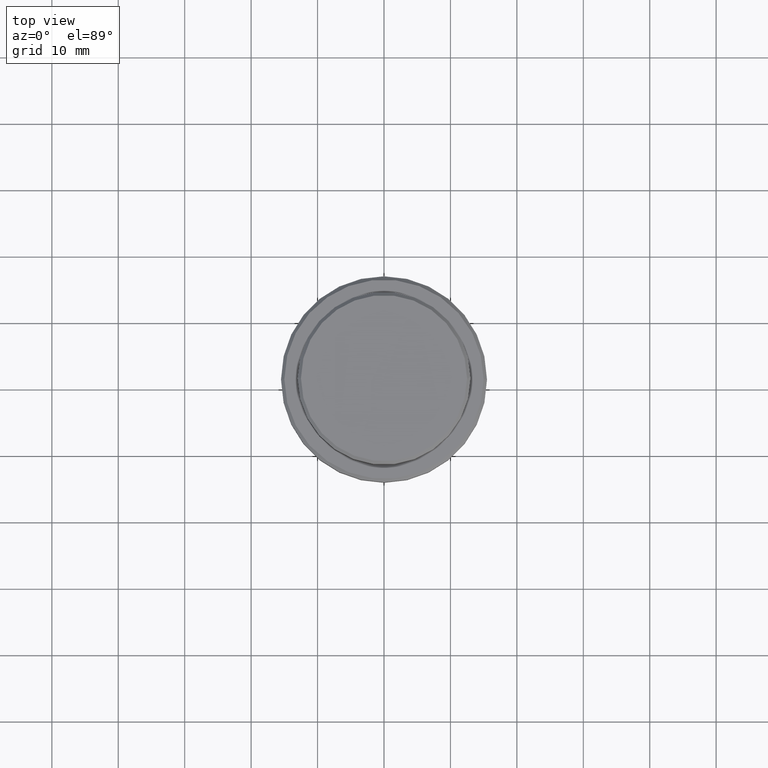
[diagram: clean part render]
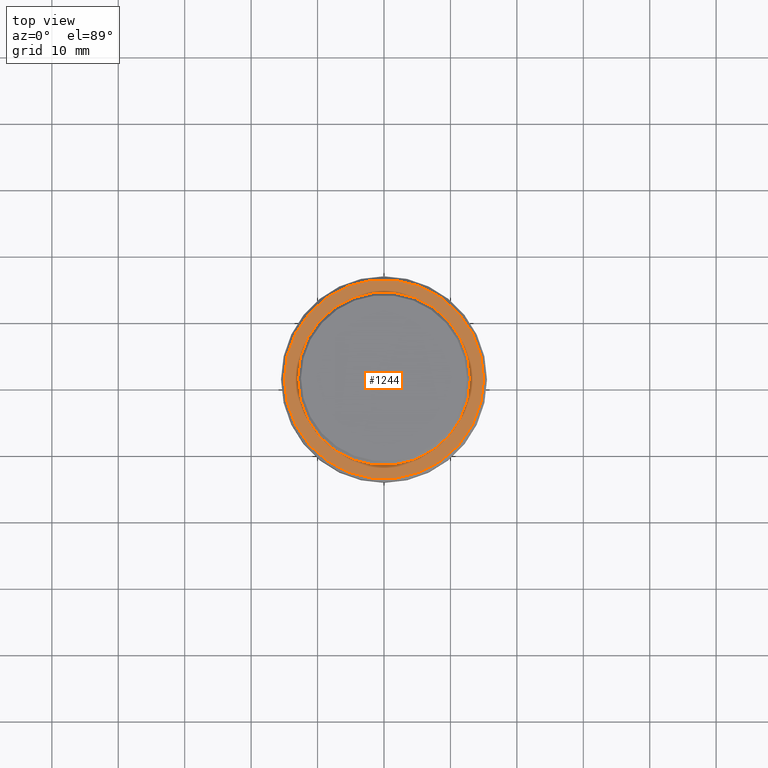
[diagram: same view with one face highlighted and labeled with its STEP entity id]
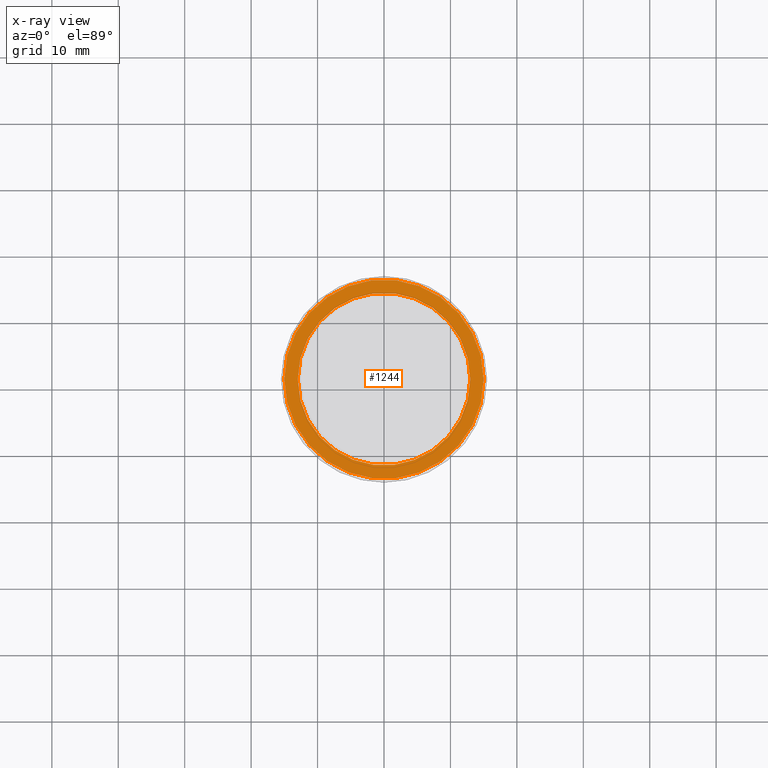
[diagram: x-ray of the same camera — body ghosted, the highlighted face saturated]
A machine part, top view. The second image highlights one B-rep face of the part: STEP entity #1244.
The next image is the same camera in x-ray: the body ghosted, the highlighted face saturated — about 0% of this face is hidden behind the body in this view.
In plain terms, the highlighted planar face has unit normal (0, -0, 1).
Its self-contained STEP definition (entity closure, byte-faithful):
#1 = DIRECTION ( 'NONE',  ( -0.000000000000000000, -0.000000000000000000, 1.000000000000000000 ) ) ;
#6 = CARTESIAN_POINT ( 'NONE',  ( 0.000000000000000000, 0.000000000000000000, -9.000000000000000000 ) ) ;
#12 = CARTESIAN_POINT ( 'NONE',  ( -12.99999999999999467, 1.592040838891558504E-15, -9.000000000000000000 ) ) ;
#125 = DIRECTION ( 'NONE',  ( 1.000000000000000000, 0.000000000000000000, 0.000000000000000000 ) ) ;
#135 = CIRCLE ( 'NONE', #226, 12.99999999999999467 ) ;
#158 = AXIS2_PLACEMENT_3D ( 'NONE', #587, #504, #823 ) ;
#226 = AXIS2_PLACEMENT_3D ( 'NONE', #451, #1201, #125 ) ;
#270 = CARTESIAN_POINT ( 'NONE',  ( 0.000000000000000000, 12.49999999999999289, -9.000000000000000000 ) ) ;
#345 = CIRCLE ( 'NONE', #796, 14.99999999999997158 ) ;
#348 = CARTESIAN_POINT ( 'NONE',  ( 0.000000000000000000, 0.000000000000000000, -9.000000000000000000 ) ) ;
#403 = CARTESIAN_POINT ( 'NONE',  ( -14.99999999999997158, 0.000000000000000000, -9.000000000000000000 ) ) ;
#451 = CARTESIAN_POINT ( 'NONE',  ( 0.000000000000000000, 0.000000000000000000, -9.000000000000000000 ) ) ;
#462 = EDGE_CURVE ( 'NONE', #1318, #1352, #135, .T. ) ;
#504 = DIRECTION ( 'NONE',  ( 0.000000000000000000, 0.000000000000000000, -1.000000000000000000 ) ) ;
#529 = ORIENTED_EDGE ( 'NONE', *, *, #1353, .T. ) ;
#560 = EDGE_CURVE ( 'NONE', #1352, #1318, #851, .T. ) ;
#587 = CARTESIAN_POINT ( 'NONE',  ( 0.000000000000000000, 0.000000000000000000, -9.000000000000000000 ) ) ;
#654 = DIRECTION ( 'NONE',  ( 1.000000000000000000, 0.000000000000000000, 0.000000000000000000 ) ) ;
#796 = AXIS2_PLACEMENT_3D ( 'NONE', #348, #1226, #654 ) ;
#817 = AXIS2_PLACEMENT_3D ( 'NONE', #270, #1285, #1402 ) ;
#823 = DIRECTION ( 'NONE',  ( 1.000000000000000000, 0.000000000000000000, 0.000000000000000000 ) ) ;
#851 = CIRCLE ( 'NONE', #158, 12.99999999999999467 ) ;
#859 = CIRCLE ( 'NONE', #1319, 14.99999999999997158 ) ;
#905 = EDGE_LOOP ( 'NONE', ( #1146, #529 ) ) ;
#914 = EDGE_LOOP ( 'NONE', ( #1145, #1205 ) ) ;
#964 = EDGE_CURVE ( 'NONE', #1246, #988, #345, .T. ) ;
#984 = FACE_BOUND ( 'NONE', #914, .T. ) ;
#988 = VERTEX_POINT ( 'NONE', #1046 ) ;
#1046 = CARTESIAN_POINT ( 'NONE',  ( 14.99999999999997158, 1.867586368699711798E-15, -9.000000000000000000 ) ) ;
#1105 = DIRECTION ( 'NONE',  ( 1.000000000000000000, 0.000000000000000000, 0.000000000000000000 ) ) ;
#1118 = CARTESIAN_POINT ( 'NONE',  ( 12.99999999999999467, 0.000000000000000000, -9.000000000000000000 ) ) ;
#1145 = ORIENTED_EDGE ( 'NONE', *, *, #462, .T. ) ;
#1146 = ORIENTED_EDGE ( 'NONE', *, *, #964, .T. ) ;
#1166 = PLANE ( 'NONE',  #817 ) ;
#1201 = DIRECTION ( 'NONE',  ( 0.000000000000000000, 0.000000000000000000, -1.000000000000000000 ) ) ;
#1205 = ORIENTED_EDGE ( 'NONE', *, *, #560, .T. ) ;
#1226 = DIRECTION ( 'NONE',  ( -0.000000000000000000, -0.000000000000000000, 1.000000000000000000 ) ) ;
#1244 = ADVANCED_FACE ( 'NONE', ( #1289, #984 ), #1166, .T. ) ;
#1246 = VERTEX_POINT ( 'NONE', #403 ) ;
#1285 = DIRECTION ( 'NONE',  ( 0.000000000000000000, -0.000000000000000000, 1.000000000000000000 ) ) ;
#1289 = FACE_OUTER_BOUND ( 'NONE', #905, .T. ) ;
#1318 = VERTEX_POINT ( 'NONE', #1118 ) ;
#1319 = AXIS2_PLACEMENT_3D ( 'NONE', #6, #1, #1105 ) ;
#1352 = VERTEX_POINT ( 'NONE', #12 ) ;
#1353 = EDGE_CURVE ( 'NONE', #988, #1246, #859, .T. ) ;
#1402 = DIRECTION ( 'NONE',  ( 1.000000000000000000, 0.000000000000000000, 0.000000000000000000 ) ) ;